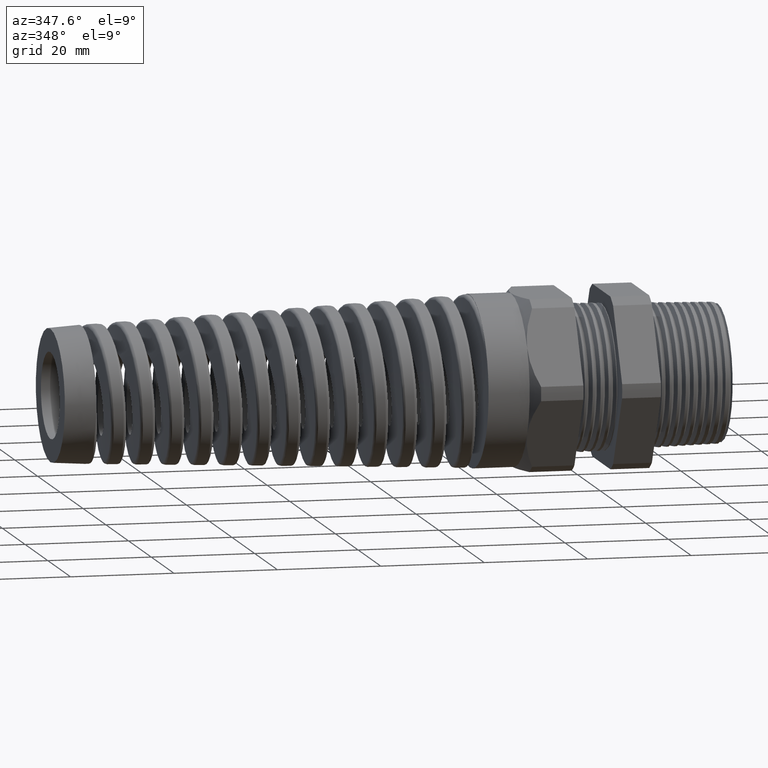
[diagram: clean part render]
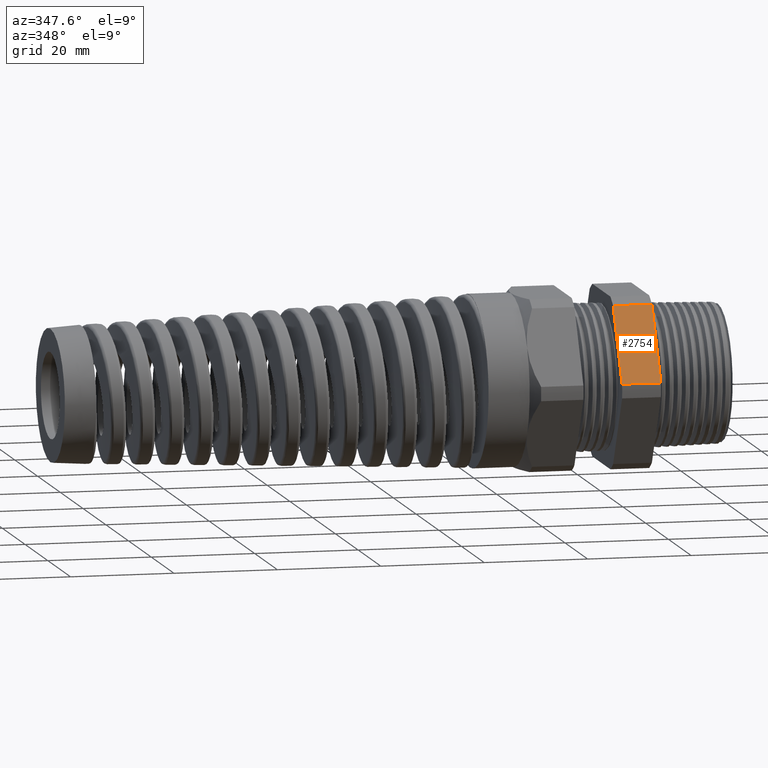
[diagram: same view with one face highlighted and labeled with its STEP entity id]
A machine part, auxiliary view. The second image highlights one B-rep face of the part: STEP entity #2754.
In plain terms, the highlighted planar face has unit normal (0, -0.866, 0.5).
Its self-contained STEP definition (entity closure, byte-faithful):
#2103 = DIRECTION ( 'NONE',  ( 0.0000000000000000000, -0.4999999999999997200, -0.8660254037844388200 ) ) ;
#2104 = DIRECTION ( 'NONE',  ( 0.0000000000000000000, -0.8660254037844388200, 0.4999999999999997200 ) ) ;
#2105 = CARTESIAN_POINT ( 'NONE',  ( 0.2800000000000000300, -0.7194909755756819800, 0.05380507471562046700 ) ) ;
#2106 = AXIS2_PLACEMENT_3D ( 'NONE', #2105, #2104, #2103 ) ;
#2108 = FACE_OUTER_BOUND ( 'NONE', #2809, .T. ) ;
#2109 = PLANE ( 'NONE',  #2106 ) ;
#2129 = DIRECTION ( 'NONE',  ( -1.000000000000000000, 0.0000000000000000000, 0.0000000000000000000 ) ) ;
#2130 = VECTOR ( 'NONE', #2129, 39.37007874015748100 ) ;
#2131 = CARTESIAN_POINT ( 'NONE',  ( 0.2800000000000000300, -0.4063420493440885700, 0.5961949252843791200 ) ) ;
#2132 = LINE ( 'NONE', #2131, #2130 ) ;
#2752 = EDGE_CURVE ( 'NONE', #11575, #8025, #2132, .T. ) ;
#2754 = ADVANCED_FACE ( 'NONE', ( #2108 ), #2109, .T. ) ;
#2756 = ORIENTED_EDGE ( 'NONE', *, *, #8024, .F. ) ;
#2757 = ORIENTED_EDGE ( 'NONE', *, *, #2758, .F. ) ;
#2758 = EDGE_CURVE ( 'NONE', #11594, #8022, #8402, .T. ) ;
#2759 = ORIENTED_EDGE ( 'NONE', *, *, #11577, .F. ) ;
#2809 = EDGE_LOOP ( 'NONE', ( #2810, #2756, #2757, #2759 ) ) ;
#2810 = ORIENTED_EDGE ( 'NONE', *, *, #2752, .T. ) ;
#3704 = CARTESIAN_POINT ( 'NONE',  ( -0.6052755905511810800, -0.4063420493440885700, 0.5961949252843791200 ) ) ;
#3705 = DIRECTION ( 'NONE',  ( 0.0000000000000000000, 0.4999999999999997200, 0.8660254037844388200 ) ) ;
#3706 = VECTOR ( 'NONE', #3705, 39.37007874015748100 ) ;
#3707 = CARTESIAN_POINT ( 'NONE',  ( -0.6052755905511810800, -0.2379165124598858200, 0.8879165124598845700 ) ) ;
#3708 = LINE ( 'NONE', #3707, #3706 ) ;
#3709 = CARTESIAN_POINT ( 'NONE',  ( -0.6052755905511810800, -0.7194909755756820900, 0.05380507471562026600 ) ) ;
#8022 = VERTEX_POINT ( 'NONE', #3709 ) ;
#8024 = EDGE_CURVE ( 'NONE', #8022, #8025, #3708, .T. ) ;
#8025 = VERTEX_POINT ( 'NONE', #3704 ) ;
#8399 = DIRECTION ( 'NONE',  ( -1.000000000000000000, 0.0000000000000000000, 0.0000000000000000000 ) ) ;
#8400 = VECTOR ( 'NONE', #8399, 39.37007874015748100 ) ;
#8401 = CARTESIAN_POINT ( 'NONE',  ( 0.2800000000000000300, -0.7194909755756820900, 0.05380507471562026600 ) ) ;
#8402 = LINE ( 'NONE', #8401, #8400 ) ;
#11575 = VERTEX_POINT ( 'NONE', #16294 ) ;
#11577 = EDGE_CURVE ( 'NONE', #11575, #11594, #16293, .T. ) ;
#11594 = VERTEX_POINT ( 'NONE', #16317 ) ;
#16290 = DIRECTION ( 'NONE',  ( 0.0000000000000000000, -0.4999999999999997200, -0.8660254037844388200 ) ) ;
#16291 = VECTOR ( 'NONE', #16290, 39.37007874015748100 ) ;
#16292 = CARTESIAN_POINT ( 'NONE',  ( -0.3100000000000000000, -0.2379165124598855400, 0.8879165124598845700 ) ) ;
#16293 = LINE ( 'NONE', #16292, #16291 ) ;
#16294 = CARTESIAN_POINT ( 'NONE',  ( -0.3100000000000000000, -0.4063420493440885700, 0.5961949252843791200 ) ) ;
#16317 = CARTESIAN_POINT ( 'NONE',  ( -0.3100000000000000000, -0.7194909755756820900, 0.05380507471562026600 ) ) ;